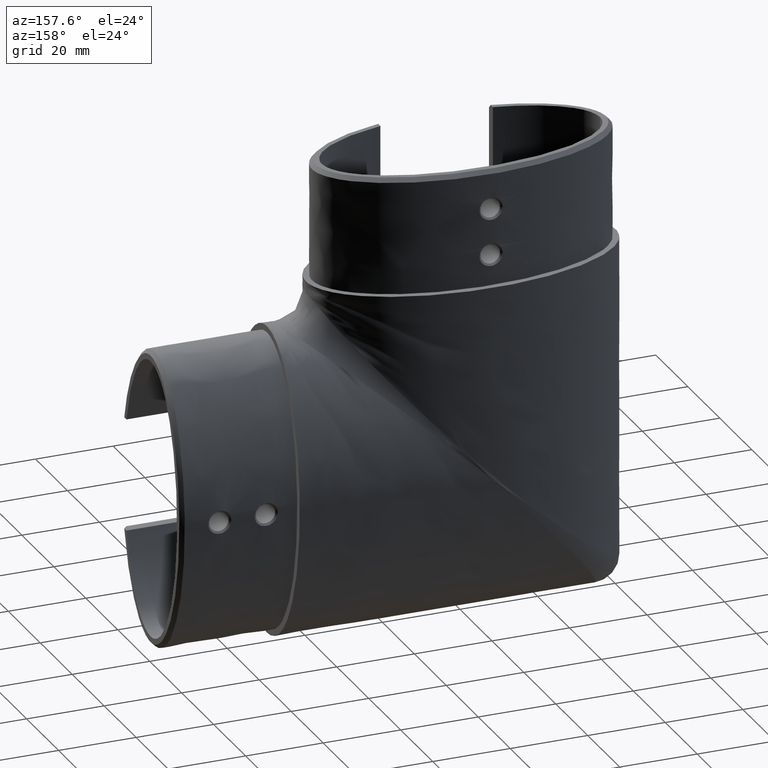
[diagram: clean part render]
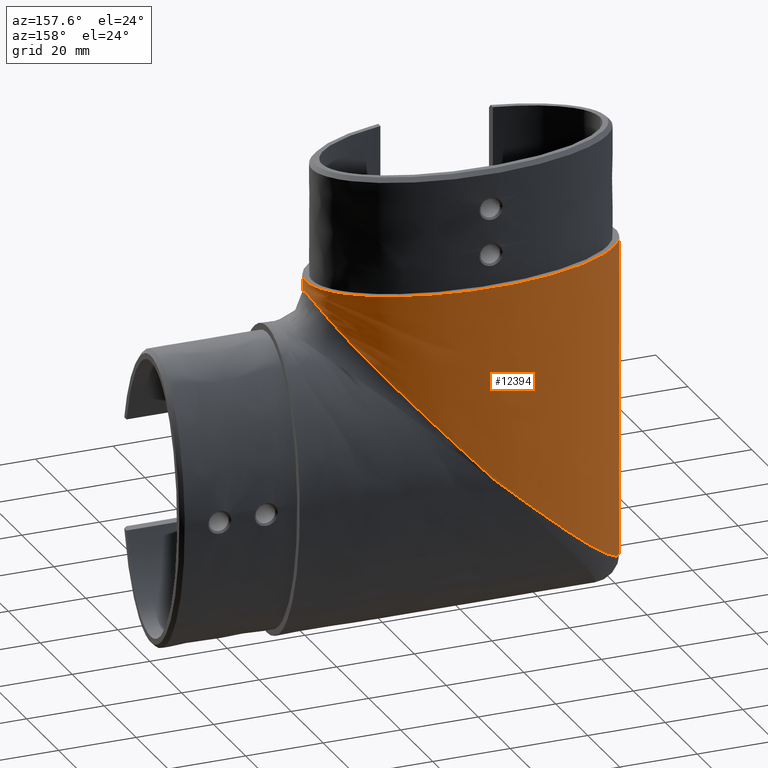
[diagram: same view with one face highlighted and labeled with its STEP entity id]
A machine part, auxiliary view. The second image highlights one B-rep face of the part: STEP entity #12394.
In plain terms, the highlighted face is a freeform B-spline surface patch.
Its self-contained STEP definition (entity closure, byte-faithful):
#261 = EDGE_CURVE ( 'NONE', #14527, #4062, #28177, .T. ) ;
#287 = CARTESIAN_POINT ( 'NONE',  ( 38.45092991785519132, 26.25127423043929298, -5.437878614517223319 ) ) ;
#377 = ORIENTED_EDGE ( 'NONE', *, *, #16284, .T. ) ;
#387 = CARTESIAN_POINT ( 'NONE',  ( 33.90548535460460045, 9.635230380953760942, -11.65758684397216527 ) ) ;
#489 = CARTESIAN_POINT ( 'NONE',  ( 26.19942108845465256, 36.14014358413577810, -20.96012856357882370 ) ) ;
#593 = CARTESIAN_POINT ( 'NONE',  ( 16.62041206968493512, 39.27856621703002560, -31.78006786132107209 ) ) ;
#702 = CARTESIAN_POINT ( 'NONE',  ( 39.83783618096099843, 18.69340420548868664, -3.267960935488825491 ) ) ;
#797 = CARTESIAN_POINT ( 'NONE',  ( 69.86754292706022795, 10.30408892572830304, 0.000000000000000000 ) ) ;
#922 = CARTESIAN_POINT ( 'NONE',  ( -12.00000000000000355, 0.9472903914045059937, 0.000000000000000000 ) ) ;
#994 = CARTESIAN_POINT ( 'NONE',  ( 9.797174393178826052E-15, 41.13217401979662213, 0.000000000000000000 ) ) ;
#1465 = VERTEX_POINT ( 'NONE', #27838 ) ;
#1808 = CARTESIAN_POINT ( 'NONE',  ( 13.65718364881100300, 1.234555737419880339, -35.05782380222301953 ) ) ;
#1972 = CARTESIAN_POINT ( 'NONE',  ( -33.91472836795607293, 31.49148173427529684, -79.47592381270435169 ) ) ;
#2071 = CARTESIAN_POINT ( 'NONE',  ( -36.02914380681530560, 29.50924034914482164, -80.92614263881293368 ) ) ;
#2171 = CARTESIAN_POINT ( 'NONE',  ( -33.85466138596509467, 9.591507237139241582, -79.43251182193333193 ) ) ;
#2269 = CARTESIAN_POINT ( 'NONE',  ( -37.57740007699788976, 13.50367389920451977, -81.87149421041522146 ) ) ;
#2661 = CARTESIAN_POINT ( 'NONE',  ( 39.88737295344098044, 18.99339611800992600, -3.186412176891505244 ) ) ;
#2759 = CARTESIAN_POINT ( 'NONE',  ( 39.66639435443937600, 23.27214537746341705, -3.548713012246904608 ) ) ;
#2862 = CARTESIAN_POINT ( 'NONE',  ( 29.60806395777997579, 6.686695637791684632, -16.96033753698011992 ) ) ;
#2973 = CARTESIAN_POINT ( 'NONE',  ( 18.58422565239150615, 2.330770856315948159, -29.59687201646798016 ) ) ;
#2999 = VECTOR ( 'NONE', #8190, 1000.000000000000000 ) ;
#3093 = CARTESIAN_POINT ( 'NONE',  ( -69.86754292706022795, 10.30408892572831903, 0.000000000000000000 ) ) ;
#3165 = CARTESIAN_POINT ( 'NONE',  ( 12.00000000000000178, 0.9472903914045025520, 0.000000000000000000 ) ) ;
#3462 = CARTESIAN_POINT ( 'NONE',  ( -12.00000000000000355, 0.9472903914045059937, 0.000000000000000000 ) ) ;
#4062 = VERTEX_POINT ( 'NONE', #25225 ) ;
#4126 = CARTESIAN_POINT ( 'NONE',  ( -8.008988384745348910, 40.73346427323605923, -57.27908234462238113 ) ) ;
#4234 = CARTESIAN_POINT ( 'NONE',  ( -39.80141946894968186, 22.68290777836187644, -82.93064573102557802 ) ) ;
#4339 = CARTESIAN_POINT ( 'NONE',  ( -36.63968267295188497, 12.26778480872566135, -81.32193179355775214 ) ) ;
#4439 = CARTESIAN_POINT ( 'NONE',  ( -32.43962188889521059, 32.61760134414419099, -78.38318634537463936 ) ) ;
#4535 = CARTESIAN_POINT ( 'NONE',  ( -29.32278163111219982, 6.523902473909981126, -75.94719830847296294 ) ) ;
#4629 = CARTESIAN_POINT ( 'NONE',  ( -37.63769755436764797, 27.54293855164729621, -81.90550511972232073 ) ) ;
#4926 = CARTESIAN_POINT ( 'NONE',  ( 37.65904460382144237, 13.62040245425703233, -6.598938324977988934 ) ) ;
#5029 = CARTESIAN_POINT ( 'NONE',  ( 39.93304270120182053, 21.79400072288195744, -3.111105553611467123 ) ) ;
#5119 = CARTESIAN_POINT ( 'NONE',  ( 39.11588640414125706, 16.25884231879897257, -4.421276809285060061 ) ) ;
#5218 = CARTESIAN_POINT ( 'NONE',  ( 39.21790172013681541, 16.51056180499656634, -4.261790050653841533 ) ) ;
#5301 =( BOUNDED_SURFACE ( )  B_SPLINE_SURFACE ( 3, 1, ( 
 ( #922, #17302 ),
 ( #3093, #24045 ),
 ( #5344, #7591 ),
 ( #14757, #21791 ),
 ( #7801, #10047 ),
 ( #14660, #12511 ) ),
 .UNSPECIFIED., .F., .F., .F. ) 
 B_SPLINE_SURFACE_WITH_KNOTS ( ( 4, 2, 4 ),
 ( 2, 2 ),
 ( 0.000000000000000000, 0.2461608321535980193, 0.4923216643071960386 ),
 ( 0.000000000000000000, 1.000000000000000000 ),
 .UNSPECIFIED. ) 
 GEOMETRIC_REPRESENTATION_ITEM ( )  RATIONAL_B_SPLINE_SURFACE ( (
 ( 1.000000000000000000, 1.000000000000000000),
 ( 0.1887947104773593787, 0.1887947104773593787),
 ( 0.08203227075829024051, 0.08203227075829024051),
 ( 0.08203227075829024051, 0.08203227075829024051),
 ( 0.1887947104773593787, 0.1887947104773593787),
 ( 1.000000000000000000, 1.000000000000000000) ) ) 
 REPRESENTATION_ITEM ( '' )  SURFACE ( )  );
#5324 = CARTESIAN_POINT ( 'NONE',  ( 21.48076346247592028, 37.94128059481298720, -26.34733691989330495 ) ) ;
#5344 = CARTESIAN_POINT ( 'NONE',  ( -60.66166778879191668, 41.13217401979662213, 0.000000000000000000 ) ) ;
#6370 = CARTESIAN_POINT ( 'NONE',  ( -1.602361235934478989, 41.13217401979662213, -51.45818611542073029 ) ) ;
#6575 = CARTESIAN_POINT ( 'NONE',  ( -12.79691044067856609, 40.07098758496690749, -61.60226912038931602 ) ) ;
#6675 = CARTESIAN_POINT ( 'NONE',  ( -37.92907796558070999, 27.11468821869712897, -82.06654954120003254 ) ) ;
#6778 = CARTESIAN_POINT ( 'NONE',  ( -36.70066744952242033, 28.75565803866341952, -81.35146637299848749 ) ) ;
#6872 = CARTESIAN_POINT ( 'NONE',  ( -15.98032334950099198, 1.707172966152271876, -64.45071548501631753 ) ) ;
#6976 = CARTESIAN_POINT ( 'NONE',  ( -13.59322553183605642, 1.222741007880903785, -62.31479781539455587 ) ) ;
#7274 = CARTESIAN_POINT ( 'NONE',  ( 39.41558265041893350, 24.07939582511575338, -3.949695355091511484 ) ) ;
#7373 = CARTESIAN_POINT ( 'NONE',  ( 32.88383067023405459, 32.29355181196618929, -12.94947599468056154 ) ) ;
#7466 = CARTESIAN_POINT ( 'NONE',  ( 39.02045527263898350, 25.09613999544224683, -4.569446811479699555 ) ) ;
#7571 = CARTESIAN_POINT ( 'NONE',  ( 34.26404181814879735, 31.19781826318677886, -11.19784346206185788 ) ) ;
#7591 = CARTESIAN_POINT ( 'NONE',  ( -60.66166778879191668, 41.13217401979662213, -110.6616677887919167 ) ) ;
#7676 = CARTESIAN_POINT ( 'NONE',  ( 13.33137240372009913, 39.97778965072481583, -35.42000256859116547 ) ) ;
#7801 = CARTESIAN_POINT ( 'NONE',  ( 69.86754292706022795, 10.30408892572830126, 0.000000000000000000 ) ) ;
#8190 = DIRECTION ( 'NONE',  ( 0.000000000000000000, 0.000000000000000000, -1.000000000000000000 ) ) ;
#8257 = CARTESIAN_POINT ( 'NONE',  ( 4.850618260777534675E-14, 41.13217401979662213, -49.99999999999995737 ) ) ;
#8821 = CARTESIAN_POINT ( 'NONE',  ( -12.39966034306676690, 1.011912822616905627, -61.24246712462140607 ) ) ;
#8905 = CARTESIAN_POINT ( 'NONE',  ( 4.850618260777534675E-14, 41.13217401979662213, -49.99999999999995737 ) ) ;
#8922 = CARTESIAN_POINT ( 'NONE',  ( -39.65161452066957537, 17.80763711302537544, -82.87574322131149529 ) ) ;
#9016 = CARTESIAN_POINT ( 'NONE',  ( -38.42309911190736216, 14.82917135175865297, -82.32606258337386862 ) ) ;
#9116 = CARTESIAN_POINT ( 'NONE',  ( -38.72515587058033759, 25.74133976001709811, -82.47439555788929511 ) ) ;
#9217 = CARTESIAN_POINT ( 'NONE',  ( -38.47216916619592553, 26.21546238806979900, -82.35075308921918236 ) ) ;
#9618 = CARTESIAN_POINT ( 'NONE',  ( 31.79410729029643434, 8.072371515796547214, -14.30022378371688063 ) ) ;
#9720 = CARTESIAN_POINT ( 'NONE',  ( 38.18986634439239936, 14.43427578516880594, -5.825831701914827576 ) ) ;
#9781 = CARTESIAN_POINT ( 'NONE',  ( 12.00000000000000178, 0.9472903914045025520, 0.000000000000000000 ) ) ;
#9815 = CARTESIAN_POINT ( 'NONE',  ( 36.20706922231730829, 29.33675317254325066, -8.632453215069245900 ) ) ;
#9927 = CARTESIAN_POINT ( 'NONE',  ( 39.96107838549525582, 19.60818697886698558, -3.064675017391145673 ) ) ;
#10028 = CARTESIAN_POINT ( 'NONE',  ( 11.67747571375293347, 40.25601124244173690, -37.23931560545030806 ) ) ;
#10047 = CARTESIAN_POINT ( 'NONE',  ( 69.86754292706022795, 10.30408892572830126, 19.86754292706022085 ) ) ;
#10757 =( BOUNDED_CURVE ( )  B_SPLINE_CURVE ( 3, ( #3165, #797, #21965, #994, #21867, #17466, #3462 ),
 .UNSPECIFIED., .F., .F. ) 
 B_SPLINE_CURVE_WITH_KNOTS ( ( 4, 3, 4 ),
 ( 5.017081634400087253, 7.853981633974482790, 10.69088163354887833 ),
 .UNSPECIFIED. ) 
 CURVE ( )  GEOMETRIC_REPRESENTATION_ITEM ( )  RATIONAL_B_SPLINE_CURVE ( ( 1.000000000000000000, 0.4345051328550209035, 0.4345051328550209035, 1.000000000000000000, 0.4345051328550209035, 0.4345051328550209035, 1.000000000000000000 ) ) 
 REPRESENTATION_ITEM ( '' )  );
#11193 = CARTESIAN_POINT ( 'NONE',  ( -39.95257130274098500, 21.60393890276256457, -82.98384102053925915 ) ) ;
#11292 = CARTESIAN_POINT ( 'NONE',  ( -20.74148856736157853, 2.974364991633378530, -68.65929117286053440 ) ) ;
#11395 = CARTESIAN_POINT ( 'NONE',  ( -13.99125778968826062, 1.297884835242250734, -62.67176231517673557 ) ) ;
#11497 = CARTESIAN_POINT ( 'NONE',  ( -17.56444729775969193, 39.06664195002985451, -65.86292339671892648 ) ) ;
#11542 = CARTESIAN_POINT ( 'NONE',  ( 12.00000000000000178, 0.9472903914045025520, -36.88265841485083030 ) ) ;
#11593 = CARTESIAN_POINT ( 'NONE',  ( -39.99689367753147451, 19.96230508119508684, -82.99894998287288672 ) ) ;
#11644 = ORIENTED_EDGE ( 'NONE', *, *, #19447, .T. ) ;
#11714 = ORIENTED_EDGE ( 'NONE', *, *, #19895, .F. ) ;
#11987 = CARTESIAN_POINT ( 'NONE',  ( 22.61555651391143940, 3.595532851400164542, -25.05934744909993128 ) ) ;
#12085 = CARTESIAN_POINT ( 'NONE',  ( 20.20765178786247063, 2.790110439528832309, -27.78101127965678074 ) ) ;
#12180 = CARTESIAN_POINT ( 'NONE',  ( 29.98028932128337232, 34.19241654448836698, -16.50176292521973309 ) ) ;
#12287 = CARTESIAN_POINT ( 'NONE',  ( 39.50092899305804650, 17.28513155675739910, -3.815217663047206553 ) ) ;
#12387 = CARTESIAN_POINT ( 'NONE',  ( 32.16930377828167309, 32.80370178002905135, -13.83771130913186909 ) ) ;
#12394 = ADVANCED_FACE ( 'NONE', ( #29789 ), #5301, .T. ) ;
#12511 = CARTESIAN_POINT ( 'NONE',  ( 12.00000000000000178, 0.9472903914045025520, -38.00000000000000711 ) ) ;
#13074 = VERTEX_POINT ( 'NONE', #20532 ) ;
#13194 = ORIENTED_EDGE ( 'NONE', *, *, #15176, .F. ) ;
#13538 = CARTESIAN_POINT ( 'NONE',  ( -37.87321489225882942, 13.93262026053651503, -82.03611872633604207 ) ) ;
#13641 = CARTESIAN_POINT ( 'NONE',  ( -30.15611290438299363, 34.09194136823886367, -76.60366945745397516 ) ) ;
#13743 = CARTESIAN_POINT ( 'NONE',  ( -15.97732120369637876, 39.44065265407814991, -64.45020257170799027 ) ) ;
#13842 = CARTESIAN_POINT ( 'NONE',  ( -31.60956891843001770, 7.948192928044991667, -77.74625613383271627 ) ) ;
#13940 = CARTESIAN_POINT ( 'NONE',  ( -29.38127583861717440, 34.53338811625262395, -75.98073815624361771 ) ) ;
#14323 = ORIENTED_EDGE ( 'NONE', *, *, #261, .T. ) ;
#14332 = CARTESIAN_POINT ( 'NONE',  ( 39.80054980969858747, 22.70599829797385993, -3.329315211895595539 ) ) ;
#14426 = CARTESIAN_POINT ( 'NONE',  ( 39.98468429613832598, 19.91745436848291106, -3.025445241650614570 ) ) ;
#14527 = VERTEX_POINT ( 'NONE', #9781 ) ;
#14530 = CARTESIAN_POINT ( 'NONE',  ( 14.07027473218636082, 1.313006390030113657, -34.60204784079591889 ) ) ;
#14639 = CARTESIAN_POINT ( 'NONE',  ( 18.25185235593725253, 38.87229725268662861, -29.96464027670617725 ) ) ;
#14660 = CARTESIAN_POINT ( 'NONE',  ( 12.00000000000000178, 0.9472903914045025520, 0.000000000000000000 ) ) ;
#14739 = CARTESIAN_POINT ( 'NONE',  ( 30.71839139497577520, 33.75244104234636922, -15.61273029926573308 ) ) ;
#14757 = CARTESIAN_POINT ( 'NONE',  ( 60.66166778879193799, 41.13217401979662213, 0.000000000000000000 ) ) ;
#14921 = CARTESIAN_POINT ( 'NONE',  ( 12.00000000000000178, 0.9472903914045025520, -19.00000000000000355 ) ) ;
#15176 = EDGE_CURVE ( 'NONE', #13074, #1465, #16914, .T. ) ;
#15745 = VECTOR ( 'NONE', #21863, 1000.000000000000000 ) ;
#15875 = CARTESIAN_POINT ( 'NONE',  ( -12.00000000000000355, 0.9472903914045059937, -60.88265841485083740 ) ) ;
#15976 = CARTESIAN_POINT ( 'NONE',  ( -19.94241702411542505, 38.39994368502654254, -67.95864778687761998 ) ) ;
#16073 = CARTESIAN_POINT ( 'NONE',  ( -37.02351096058069402, 28.36343148751085508, -81.54795089306671230 ) ) ;
#16172 = CARTESIAN_POINT ( 'NONE',  ( -40.00132189605535871, 20.78232607341516669, -83.00044683730804707 ) ) ;
#16271 = CARTESIAN_POINT ( 'NONE',  ( -39.17030075284586843, 24.76333395559321460, -82.67886110796666799 ) ) ;
#16284 = EDGE_CURVE ( 'NONE', #4062, #26135, #30167, .T. ) ;
#16677 = CARTESIAN_POINT ( 'NONE',  ( 23.41424132404764435, 3.883779978148776735, -24.15175196226460130 ) ) ;
#16778 = CARTESIAN_POINT ( 'NONE',  ( 34.58551798211751560, 10.20972470168351620, -10.78301145025850083 ) ) ;
#16884 = CARTESIAN_POINT ( 'NONE',  ( 23.07207173779083575, 37.39716212440547594, -24.54714981540827878 ) ) ;
#16914 = LINE ( 'NONE', #22186, #2999 ) ;
#16985 = CARTESIAN_POINT ( 'NONE',  ( 25.77740634187102842, 4.831061611669921874, -21.44198376174755438 ) ) ;
#17085 = CARTESIAN_POINT ( 'NONE',  ( 6.697483299554829017, 40.91835552515904340, -42.70029204859355332 ) ) ;
#17302 = CARTESIAN_POINT ( 'NONE',  ( -12.00000000000000355, 0.9472903914045059937, -62.00000000000000711 ) ) ;
#17466 = CARTESIAN_POINT ( 'NONE',  ( -69.86754292706022795, 10.30408892572831547, 0.000000000000000000 ) ) ;
#18119 = CARTESIAN_POINT ( 'NONE',  ( -3.204476722296543123, 41.08283758666264163, -52.91616008710615660 ) ) ;
#18225 = CARTESIAN_POINT ( 'NONE',  ( -11.20364635189410585, 40.32710252517912153, -60.16698105688945475 ) ) ;
#18330 = CARTESIAN_POINT ( 'NONE',  ( -35.68537257628680237, 29.86514266816538665, -80.70045655482857683 ) ) ;
#18427 = CARTESIAN_POINT ( 'NONE',  ( -39.92234789308371745, 21.87511018357604087, -82.97344860965341695 ) ) ;
#18524 = CARTESIAN_POINT ( 'NONE',  ( -17.56974431561211958, 2.084691062107454584, -65.86408978107471057 ) ) ;
#18625 = CARTESIAN_POINT ( 'NONE',  ( -27.78167683104031838, 5.731996334695679707, -74.68037651052499371 ) ) ;
#18927 = CARTESIAN_POINT ( 'NONE',  ( 35.88441262662598774, 11.45251128397127260, -9.068454074022426425 ) ) ;
#19025 = CARTESIAN_POINT ( 'NONE',  ( 37.37839356195645735, 13.23226416138049544, -7.000134030939642038 ) ) ;
#19122 = CARTESIAN_POINT ( 'NONE',  ( 39.96491958574362258, 21.48297701559252459, -3.058240843593190483 ) ) ;
#19218 = CARTESIAN_POINT ( 'NONE',  ( 15.30733052846995790, 1.560054365434294876, -33.23539906283150458 ) ) ;
#19324 = CARTESIAN_POINT ( 'NONE',  ( 36.81589912675006104, 28.64896244443221462, -7.797042605859348718 ) ) ;
#19447 = EDGE_CURVE ( 'NONE', #26135, #1465, #25091, .T. ) ;
#19895 = EDGE_CURVE ( 'NONE', #14527, #13074, #10757, .T. ) ;
#20369 = CARTESIAN_POINT ( 'NONE',  ( 4.850618260777534675E-14, 41.13217401979662213, -49.99999999999995737 ) ) ;
#20532 = CARTESIAN_POINT ( 'NONE',  ( -12.00000000000000355, 0.9472903914045059937, 0.000000000000000000 ) ) ;
#20577 = CARTESIAN_POINT ( 'NONE',  ( -39.68003118622984005, 23.21533625898480935, -82.88653165345806428 ) ) ;
#20675 = CARTESIAN_POINT ( 'NONE',  ( -24.67455733019375685, 4.344605302513329548, -72.06777123968744547 ) ) ;
#20772 = CARTESIAN_POINT ( 'NONE',  ( -34.63688045904622470, 30.88136023863657442, -79.99137177680867694 ) ) ;
#20868 = CARTESIAN_POINT ( 'NONE',  ( -38.67834980536483158, 15.29922285135822868, -82.45188247906285994 ) ) ;
#20967 = CARTESIAN_POINT ( 'NONE',  ( -25.48301880800796582, 36.45084786968195800, -72.75375668535629359 ) ) ;
#21277 = CARTESIAN_POINT ( 'NONE',  ( 36.50530020950405685, 12.12118886413082564, -8.225722048498736783 ) ) ;
#21369 = CARTESIAN_POINT ( 'NONE',  ( 38.69075475728328684, 25.80753128930308549, -5.076238963981865915 ) ) ;
#21467 = CARTESIAN_POINT ( 'NONE',  ( 38.90235988799994260, 15.77482464824199759, -4.751523190879988867 ) ) ;
#21566 = CARTESIAN_POINT ( 'NONE',  ( 38.44085776673519916, 14.86077931217416470, -5.452730335026092057 ) ) ;
#21670 = CARTESIAN_POINT ( 'NONE',  ( 15.79954647669395662, 39.46536964594245944, -32.69036445080642750 ) ) ;
#21791 = CARTESIAN_POINT ( 'NONE',  ( 60.66166778879193799, 41.13217401979662213, 10.66166778879193444 ) ) ;
#21863 = DIRECTION ( 'NONE',  ( 0.000000000000000000, 0.000000000000000000, -1.000000000000000000 ) ) ;
#21867 = CARTESIAN_POINT ( 'NONE',  ( -60.66166778879190957, 41.13217401979662213, 0.000000000000000000 ) ) ;
#21965 = CARTESIAN_POINT ( 'NONE',  ( 60.66166778879193799, 41.13217401979662213, 0.000000000000000000 ) ) ;
#22186 = CARTESIAN_POINT ( 'NONE',  ( -12.00000000000000355, 0.9472903914045059937, -31.00000000000000355 ) ) ;
#22716 = CARTESIAN_POINT ( 'NONE',  ( -6.406839430112916567, 40.88358121861665495, -55.82573400491061477 ) ) ;
#22923 = CARTESIAN_POINT ( 'NONE',  ( -39.99210373043757016, 21.05769169462985246, -82.99735349819746943 ) ) ;
#23024 = CARTESIAN_POINT ( 'NONE',  ( -39.36333490667741586, 24.25878087167773955, -82.76027909436533037 ) ) ;
#23121 = CARTESIAN_POINT ( 'NONE',  ( -39.77946994951228277, 18.34283183869533218, -82.92267158249741499 ) ) ;
#23216 = CARTESIAN_POINT ( 'NONE',  ( -15.18494730219011579, 1.534504160987337329, -63.74065900846100163 ) ) ;
#23530 = EDGE_LOOP ( 'NONE', ( #14323, #377, #11644, #13194, #11714 ) ) ;
#23624 = CARTESIAN_POINT ( 'NONE',  ( 37.93994785644254364, 27.09603225955266126, -6.192240056746528332 ) ) ;
#23716 = CARTESIAN_POINT ( 'NONE',  ( 28.09738988454166631, 5.889650674185478607, -18.74632883831879226 ) ) ;
#23823 = CARTESIAN_POINT ( 'NONE',  ( 37.66845155399077782, 27.49715829716359750, -6.585499238254347354 ) ) ;
#23919 = CARTESIAN_POINT ( 'NONE',  ( 24.99489969543195755, 4.501481088425240529, -22.34336428932968133 ) ) ;
#24025 = CARTESIAN_POINT ( 'NONE',  ( 40.00077934755418596, 20.85356421854934439, -2.998726803005604680 ) ) ;
#24045 = CARTESIAN_POINT ( 'NONE',  ( -69.86754292706022795, 10.30408892572831903, -119.8675429270602280 ) ) ;
#25091 = B_SPLINE_CURVE_WITH_KNOTS ( 'NONE', 3,
 ( #20369, #6370, #18119, #22716, #4126, #18225, #6575, #13743, #11497, #15976, #27633, #30297, #30008, #20967, #25176, #13940, #13641, #30102, #4439, #1972, #20772, #18330, #2071, #6778, #16073, #4629, #6675, #9217, #9116, #16271, #23024, #20577, #4234, #18427, #11193, #22923, #16172, #11593, #27835, #23121, #8922, #25288, #27530, #20868, #9016, #13538, #2269, #4339, #27731, #27926, #2171, #25485, #13842, #4535, #18625, #20675, #29904, #11292, #25379, #30201, #18524, #6872, #23216, #11395, #6976, #25578, #8821, #15875 ),
 .UNSPECIFIED., .F., .F.,
 ( 4, 2, 2, 2, 2, 2, 2, 2, 2, 2, 2, 2, 2, 2, 2, 2, 2, 2, 2, 2, 2, 2, 2, 2, 2, 2, 2, 2, 2, 2, 2, 2, 2, 4 ),
 ( -5.579999971400171846E-05, 0.006443800978272206693, 0.01294340195625841294, 0.01944300293424462006, 0.02594260391223083759, 0.02919240440122393421, 0.03244220489021703430, 0.03894180586820323448, 0.04219160635719633456, 0.04544140684618944853, 0.04869120733518254862, 0.05031610757967909520, 0.05194100782417564871, 0.05356590806867220222, 0.05519080831316876268, 0.05681570855766530231, 0.05844060880216185583, 0.05925305892441013605, 0.06006550904665840934, 0.06169040929115496286, 0.06331530953565152331, 0.06494020978014806988, 0.06656511002464461646, 0.06819001026914116304, 0.07143981075813428394, 0.07468961124712740485, 0.07793941173612051188, 0.08443901271410673981, 0.09093861369209296774, 0.09418841418108608865, 0.09743821467007920956, 0.1006880151590723166, 0.1023129154035689048, 0.1039378156480654652 ),
 .UNSPECIFIED. ) ;
#25124 = CARTESIAN_POINT ( 'NONE',  ( 12.41438053804141006, 1.014292986423639409, -36.42695843730879091 ) ) ;
#25176 = CARTESIAN_POINT ( 'NONE',  ( -27.05146747035885468, 35.75887487157142175, -74.07641687603320690 ) ) ;
#25225 = CARTESIAN_POINT ( 'NONE',  ( 12.00000000000000178, 0.9472903914045025520, -36.88265841485083030 ) ) ;
#25288 = CARTESIAN_POINT ( 'NONE',  ( -39.32775450862775557, 16.77521354694128419, -82.74543612326144171 ) ) ;
#25379 = CARTESIAN_POINT ( 'NONE',  ( -19.94908524524591442, 2.734198222721438754, -67.96450501476465433 ) ) ;
#25485 = CARTESIAN_POINT ( 'NONE',  ( -32.37160860541042950, 8.466280361775373464, -78.33162022317617357 ) ) ;
#25578 = CARTESIAN_POINT ( 'NONE',  ( -12.79685272017190734, 1.079662095752949913, -61.59963343081637532 ) ) ;
#25978 = CARTESIAN_POINT ( 'NONE',  ( 32.50931571913989160, 8.566251192183596430, -13.41668027185549228 ) ) ;
#26071 = CARTESIAN_POINT ( 'NONE',  ( 38.79037455760316533, 15.54118646251289526, -4.923038917859683394 ) ) ;
#26135 = VERTEX_POINT ( 'NONE', #8905 ) ;
#26171 = CARTESIAN_POINT ( 'NONE',  ( 40.00454865005475824, 20.53990345536923101, -2.992445545973758225 ) ) ;
#26271 = CARTESIAN_POINT ( 'NONE',  ( 27.73572710007241682, 35.42797740867361966, -19.17325767460427954 ) ) ;
#26386 = CARTESIAN_POINT ( 'NONE',  ( 39.32315711572249484, 24.34236092910816396, -4.096227160867034200 ) ) ;
#27530 = CARTESIAN_POINT ( 'NONE',  ( -39.13134224914884385, 16.27398107160352936, -82.66180476047185266 ) ) ;
#27633 = CARTESIAN_POINT ( 'NONE',  ( -20.73462600244042875, 38.15999756269864918, -68.65329852887249729 ) ) ;
#27731 = CARTESIAN_POINT ( 'NONE',  ( -35.96966728527866763, 11.53745168829952306, -80.89424571704068967 ) ) ;
#27835 = CARTESIAN_POINT ( 'NONE',  ( -39.95163853842301904, 19.41976834776793481, -82.98398529569014670 ) ) ;
#27838 = CARTESIAN_POINT ( 'NONE',  ( -12.00000000000000355, 0.9472903914045059937, -60.88265841485083740 ) ) ;
#27926 = CARTESIAN_POINT ( 'NONE',  ( -34.57752762792484447, 10.19889259906901913, -79.94956553792820841 ) ) ;
#28177 = LINE ( 'NONE', #14921, #15745 ) ;
#28317 = CARTESIAN_POINT ( 'NONE',  ( 39.12531612092448796, 24.85130351875661958, -4.406531725316958692 ) ) ;
#28420 = CARTESIAN_POINT ( 'NONE',  ( 39.65964690438641327, 17.82657746624028405, -3.558872754448738185 ) ) ;
#28528 = CARTESIAN_POINT ( 'NONE',  ( 34.93129553728671510, 30.61179637686088739, -10.33252242561591139 ) ) ;
#28623 = CARTESIAN_POINT ( 'NONE',  ( 19.06297841491710798, 38.65273814528053009, -29.05890479934961590 ) ) ;
#28734 = CARTESIAN_POINT ( 'NONE',  ( 16.12908371740556035, 1.740329914372236830, -32.32520661312423726 ) ) ;
#28834 = CARTESIAN_POINT ( 'NONE',  ( 3.350808532117590222, 41.13217401979662213, -46.34769689847810525 ) ) ;
#29789 = FACE_OUTER_BOUND ( 'NONE', #23530, .T. ) ;
#29847 = CARTESIAN_POINT ( 'NONE',  ( 12.82961295728947704, 1.085259844759096204, -35.96986521070408571 ) ) ;
#29904 = CARTESIAN_POINT ( 'NONE',  ( -23.10826481607558236, 3.751555988923758189, -70.72097142991050589 ) ) ;
#30008 = CARTESIAN_POINT ( 'NONE',  ( -23.11118261162665277, 37.35963385820509330, -70.71899176938214282 ) ) ;
#30102 = CARTESIAN_POINT ( 'NONE',  ( -31.68641292693784450, 33.13314907241034035, -77.80574811345471176 ) ) ;
#30167 = B_SPLINE_CURVE_WITH_KNOTS ( 'NONE', 3,
 ( #11542, #25124, #29847, #1808, #14530, #19218, #28734, #2973, #12085, #11987, #16677, #23919, #16985, #23716, #2862, #9618, #25978, #387, #16778, #18927, #21277, #19025, #4926, #9720, #21566, #26071, #21467, #5119, #5218, #12287, #28420, #702, #2661, #9927, #14426, #26171, #24025, #19122, #5029, #14332, #2759, #7274, #26386, #28317, #7466, #21369, #287, #23624, #23823, #19324, #9815, #28528, #7571, #7373, #12387, #14739, #12180, #26271, #489, #16884, #5324, #28623, #14639, #593, #21670, #7676, #10028, #17085, #28834, #8257 ),
 .UNSPECIFIED., .F., .F.,
 ( 4, 2, 2, 2, 2, 2, 2, 2, 2, 2, 2, 2, 2, 2, 2, 2, 2, 2, 2, 2, 2, 2, 2, 2, 2, 2, 2, 2, 2, 2, 2, 2, 2, 2, 4 ),
 ( -6.000000000221772542E-08, 0.001858640467586715169, 0.003717340935173432583, 0.007434741870346870882, 0.01486954374069374835, 0.01858694467586718274, 0.02230434561104062408, 0.02973914748138750327, 0.03345654841656094808, 0.03717394935173439635, 0.04089135028690784462, 0.04275005075449456876, 0.04460875122208129290, 0.04553810145587465497, 0.04646745168966801703, 0.04832615215725474811, 0.04925550239104810324, 0.05018485262484146531, 0.05111420285863482044, 0.05204355309242818250, 0.05390225356001490664, 0.05483160379380826871, 0.05576095402760163772, 0.05761965449518836879, 0.05947835496277508599, 0.06319575589794855508, 0.06691315683312201723, 0.07063055776829546550, 0.07434795870346891378, 0.08178276057381582420, 0.08921756244416273463, 0.09293496337933618290, 0.09665236431450963117, 0.1040871661848565277, 0.1189567699255503208 ),
 .UNSPECIFIED. ) ;
#30201 = CARTESIAN_POINT ( 'NONE',  ( -18.36344317789161451, 2.289444588637095990, -66.56710444610244792 ) ) ;
#30297 = CARTESIAN_POINT ( 'NONE',  ( -22.31857953256045946, 37.63999586912107986, -70.03309740988913745 ) ) ;